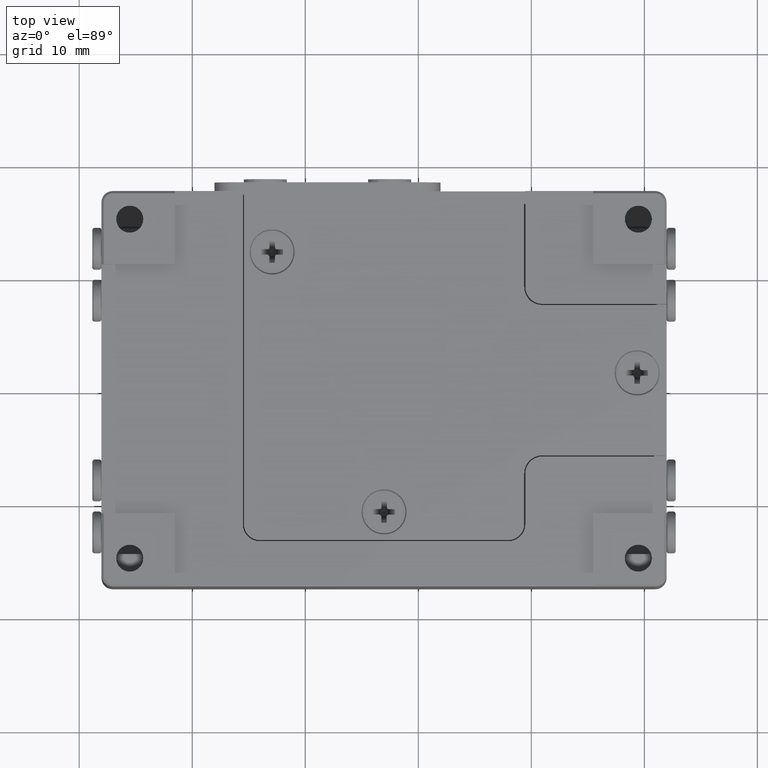
[diagram: clean part render]
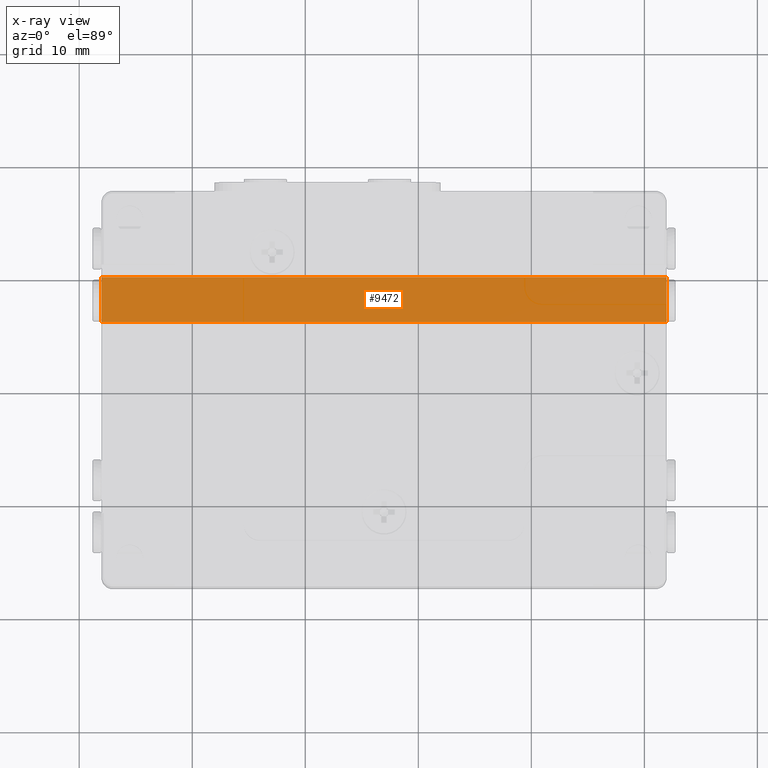
[diagram: x-ray — body ghosted, one internal face saturated and labeled with its STEP entity id]
A machine part, top view, then the same camera in x-ray: the body is ghosted and one INTERNAL B-rep face — a face not visible from any outside direction — is saturated and labeled: STEP entity #9472.
In plain terms, the highlighted planar face has unit normal (0, 0, -1).
Its self-contained STEP definition (entity closure, byte-faithful):
#840 = DIRECTION ( 'NONE',  ( 0.000000000000000000, 1.000000000000000000, 0.000000000000000000 ) ) ;
#1376 = CARTESIAN_POINT ( 'NONE',  ( 27.63157894736844966, 1.455465587044536102, 4.000000000000000000 ) ) ;
#1403 = CARTESIAN_POINT ( 'NONE',  ( 27.63157894736844966, 1.455465587044536102, 4.000000000000000000 ) ) ;
#1678 = VECTOR ( 'NONE', #5602, 1000.000000000000000 ) ;
#1756 = FACE_OUTER_BOUND ( 'NONE', #8972, .T. ) ;
#2198 = CARTESIAN_POINT ( 'NONE',  ( -22.36842105263154679, 5.455465587044540321, 4.000000000000000000 ) ) ;
#2263 = LINE ( 'NONE', #6547, #12535 ) ;
#2835 = EDGE_CURVE ( 'NONE', #7555, #8765, #12657, .T. ) ;
#3702 = CARTESIAN_POINT ( 'NONE',  ( 0.000000000000000000, 0.000000000000000000, 4.000000000000000000 ) ) ;
#4531 = CARTESIAN_POINT ( 'NONE',  ( -22.36842105263154679, 1.455465587044536102, 4.000000000000000000 ) ) ;
#5002 = CARTESIAN_POINT ( 'NONE',  ( -22.36842105263154679, 1.455465587044536102, 4.000000000000000000 ) ) ;
#5298 = EDGE_CURVE ( 'NONE', #12025, #8765, #9144, .T. ) ;
#5560 = EDGE_CURVE ( 'NONE', #12025, #11484, #2263, .T. ) ;
#5602 = DIRECTION ( 'NONE',  ( -1.000000000000000000, 0.000000000000000000, 0.000000000000000000 ) ) ;
#5842 = PLANE ( 'NONE',  #6636 ) ;
#6002 = ORIENTED_EDGE ( 'NONE', *, *, #5298, .F. ) ;
#6499 = LINE ( 'NONE', #1376, #1678 ) ;
#6547 = CARTESIAN_POINT ( 'NONE',  ( 27.63157894736844966, 12.95546558704454121, 4.000000000000000000 ) ) ;
#6636 = AXIS2_PLACEMENT_3D ( 'NONE', #3702, #7923, #12461 ) ;
#7555 = VERTEX_POINT ( 'NONE', #4531 ) ;
#7923 = DIRECTION ( 'NONE',  ( 0.000000000000000000, 0.000000000000000000, -1.000000000000000000 ) ) ;
#8765 = VERTEX_POINT ( 'NONE', #2198 ) ;
#8972 = EDGE_LOOP ( 'NONE', ( #6002, #9482, #13024, #10063 ) ) ;
#9144 = LINE ( 'NONE', #12279, #10965 ) ;
#9472 = ADVANCED_FACE ( 'NONE', ( #1756 ), #5842, .T. ) ;
#9482 = ORIENTED_EDGE ( 'NONE', *, *, #5560, .T. ) ;
#10063 = ORIENTED_EDGE ( 'NONE', *, *, #2835, .T. ) ;
#10642 = EDGE_CURVE ( 'NONE', #11484, #7555, #6499, .T. ) ;
#10819 = CARTESIAN_POINT ( 'NONE',  ( 27.63157894736844966, 5.455465587044540321, 4.000000000000000000 ) ) ;
#10867 = DIRECTION ( 'NONE',  ( 0.000000000000000000, -1.000000000000000000, 0.000000000000000000 ) ) ;
#10965 = VECTOR ( 'NONE', #13319, 1000.000000000000000 ) ;
#11484 = VERTEX_POINT ( 'NONE', #1403 ) ;
#12025 = VERTEX_POINT ( 'NONE', #10819 ) ;
#12279 = CARTESIAN_POINT ( 'NONE',  ( 27.63157894736844966, 5.455465587044540321, 4.000000000000000000 ) ) ;
#12461 = DIRECTION ( 'NONE',  ( 0.000000000000000000, -1.000000000000000000, 0.000000000000000000 ) ) ;
#12535 = VECTOR ( 'NONE', #10867, 1000.000000000000000 ) ;
#12657 = LINE ( 'NONE', #5002, #13015 ) ;
#13015 = VECTOR ( 'NONE', #840, 1000.000000000000000 ) ;
#13024 = ORIENTED_EDGE ( 'NONE', *, *, #10642, .T. ) ;
#13319 = DIRECTION ( 'NONE',  ( -1.000000000000000000, 0.000000000000000000, 0.000000000000000000 ) ) ;